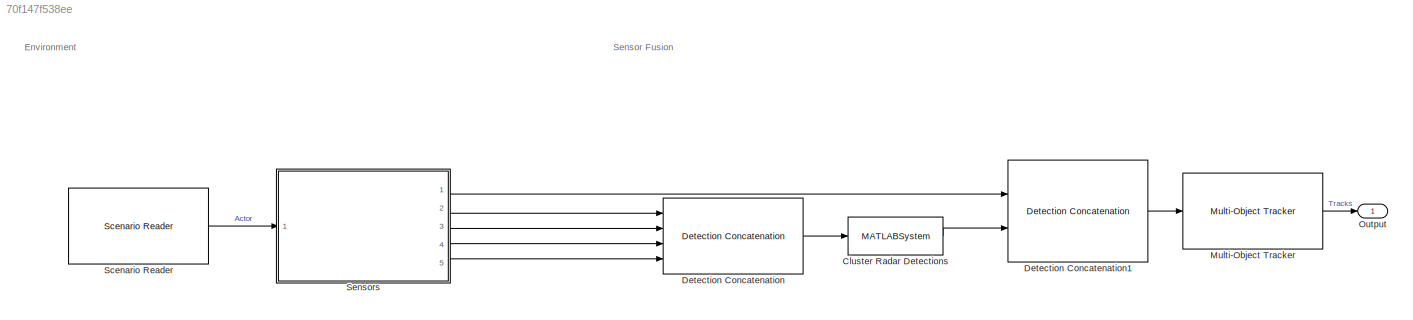
MODEL slx_70f147f538ee
KIND model
CONFIG AbsTol = auto
CONFIG EnableMultiTasking = off
CONFIG FixedStep = 0.1
CONFIG MaxStep = auto
CONFIG MinStep = auto
CONFIG RelTol = 1e-3
CONFIG SampleTimeConstraint = Unconstrained
CONFIG Solver = FixedStepDiscrete
CONFIG SolverName = FixedStepDiscrete
CONFIG StartTime = 0.0
CONFIG StopTime = 14
BLOCK [MATLABSystem] Cluster Radar Detections
  BusName = BusRadarClusterDetections
  BusNameSource = Property
  ClusterSize = 5
  MaskDisplay = disp(['Detection' char(10) 'Clustering']);\nport_label('input',1,'In');\nport_label('output',1,'Out');
  MaskType = helperClusterDetections
  Ports = [1, 1]
  SimulateUsing = Interpreted execution
  System = helperClusterDetections
BLOCK [Reference] Detection Concatenation  REF=drivinglib/Detection Concatenation
  Ports = [4, 1]
  SourceBlock = drivinglib/Detection Concatenation
  SourceProductBaseCode = DR
  SourceProductName = Automated Driving Toolbox
  SourceType = driving.internal.DetectionConcatenation
BLOCK [Reference] Detection Concatenation1  REF=drivinglib/Detection Concatenation
  Ports = [2, 1]
  SourceBlock = drivinglib/Detection Concatenation
  SourceProductBaseCode = DR
  SourceProductName = Automated Driving Toolbox
  SourceType = driving.internal.DetectionConcatenation
BLOCK [Reference] Multi-Object Tracker  REF=drivinglib/Multi-Object Tracker
  Ports = [1, 1]
  SourceBlock = drivinglib/Multi-Object Tracker
  SourceProductBaseCode = DR
  SourceProductName = Automated Driving Toolbox
  SourceType = multiObjectTracker
BLOCK [Outport] Output
  IconDisplay = Port number
BLOCK [Reference] Scenario Reader  REF=drivingscenarioandsensors/Scenario Reader
  Ports = [0, 1]
  SourceBlock = drivingscenarioandsensors/Scenario Reader
  SourceProductBaseCode = DR
  SourceProductName = Automated Driving Toolbox
  SourceType = driving.scenario.internal.ScenarioReader
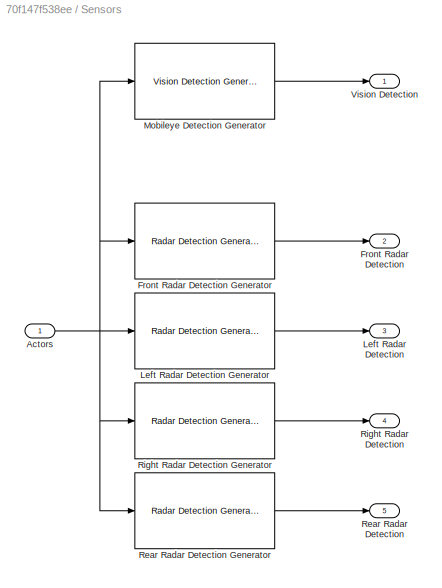
BLOCK [SubSystem] Sensors
  Ports = [1, 5]
  RequestExecContextInheritance = off
BLOCK [Inport] Sensors/Actors
  IconDisplay = Port number
BLOCK [Outport] Sensors/Front Radar Detection
  IconDisplay = Port number
  Port = 2
BLOCK [Reference] Sensors/Front Radar Detection Generator  REF=drivingscenarioandsensors/Radar Detection Generator
  Ports = [1, 1]
  SourceBlock = drivingscenarioandsensors/Radar Detection Generator
  SourceProductBaseCode = DR
  SourceProductName = Automated Driving Toolbox
  SourceType = radarDetectionGenerator
BLOCK [Outport] Sensors/Left Radar Detection
  IconDisplay = Port number
  Port = 3
BLOCK [Reference] Sensors/Left Radar Detection Generator  REF=drivingscenarioandsensors/Radar Detection Generator
  Ports = [1, 1]
  SourceBlock = drivingscenarioandsensors/Radar Detection Generator
  SourceProductBaseCode = DR
  SourceProductName = Automated Driving Toolbox
  SourceType = radarDetectionGenerator
BLOCK [Reference] Sensors/Mobileye Detection Generator  REF=drivingscenarioandsensors/Vision Detection Generator
  Ports = [1, 1]
  SourceBlock = drivingscenarioandsensors/Vision Detection Generator
  SourceProductBaseCode = DR
  SourceProductName = Automated Driving Toolbox
  SourceType = visionDetectionGenerator
BLOCK [Outport] Sensors/Rear Radar Detection
  IconDisplay = Port number
  Port = 5
BLOCK [Reference] Sensors/Rear Radar Detection Generator  REF=drivingscenarioandsensors/Radar Detection Generator
  Ports = [1, 1]
  SourceBlock = drivingscenarioandsensors/Radar Detection Generator
  SourceProductBaseCode = DR
  SourceProductName = Automated Driving Toolbox
  SourceType = radarDetectionGenerator
BLOCK [Outport] Sensors/Right Radar Detection
  IconDisplay = Port number
  Port = 4
BLOCK [Reference] Sensors/Right Radar Detection Generator  REF=drivingscenarioandsensors/Radar Detection Generator
  Ports = [1, 1]
  SourceBlock = drivingscenarioandsensors/Radar Detection Generator
  SourceProductBaseCode = DR
  SourceProductName = Automated Driving Toolbox
  SourceType = radarDetectionGenerator
BLOCK [Outport] Sensors/Vision Detection
  IconDisplay = Port number
ANNOTATION (root): Environment
ANNOTATION (root): Sensor Fusion
LINE Cluster Radar Detections:1 -> Detection Concatenation1:2
LINE Detection Concatenation1:1 -> Multi-Object Tracker:1
LINE Detection Concatenation:1 -> Cluster Radar Detections:1
LINE Multi-Object Tracker:1 -> Output:1
LINE Scenario Reader:1 -> Sensors:1
NET Sensors/Actors:1 -> Sensors/Front Radar Detection Generator:1, Sensors/Left Radar Detection Generator:1, Sensors/Mobileye Detection Generator:1, Sensors/Rear Radar Detection Generator:1, Sensors/Right Radar Detection Generator:1
LINE Sensors/Front Radar Detection Generator:1 -> Sensors/Front Radar Detection:1
LINE Sensors/Left Radar Detection Generator:1 -> Sensors/Left Radar Detection:1
LINE Sensors/Mobileye Detection Generator:1 -> Sensors/Vision Detection:1
LINE Sensors/Rear Radar Detection Generator:1 -> Sensors/Rear Radar Detection:1
LINE Sensors/Right Radar Detection Generator:1 -> Sensors/Right Radar Detection:1
LINE Sensors:1 -> Detection Concatenation1:1
LINE Sensors:2 -> Detection Concatenation:1
LINE Sensors:3 -> Detection Concatenation:2
LINE Sensors:4 -> Detection Concatenation:3
LINE Sensors:5 -> Detection Concatenation:4
note: NET lines group one-source signal fan-out (src -> all destinations, sorted); 1:1 wires keep LINE
